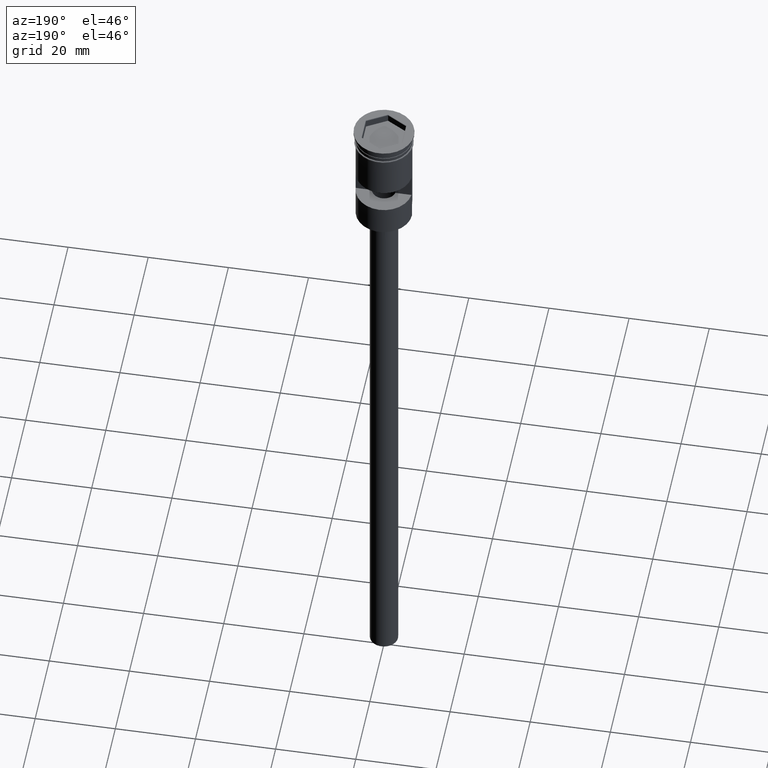
[diagram: clean part render]
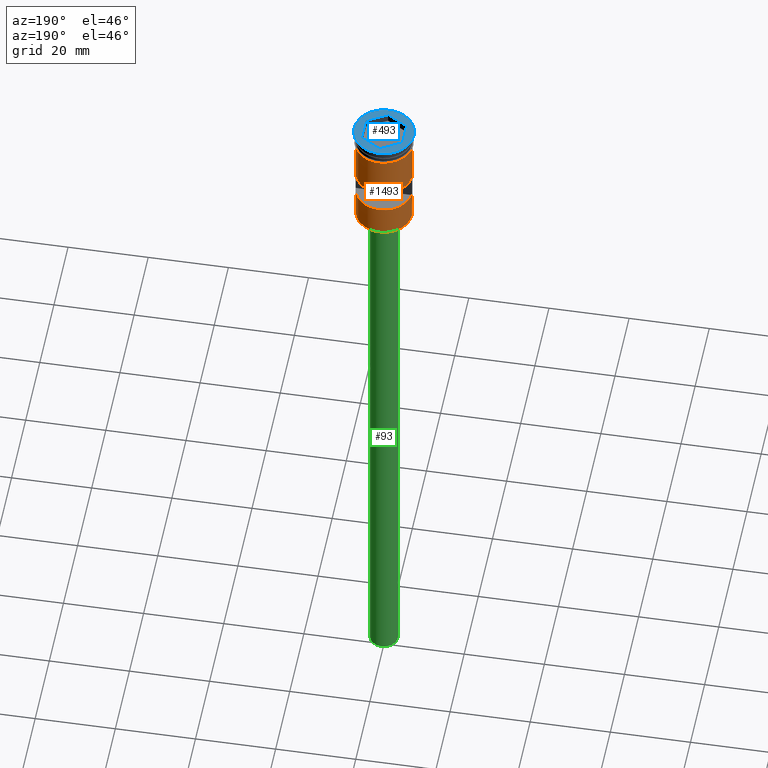
[diagram: same view with three faces highlighted in distinct colors, each labeled with its STEP entity id]
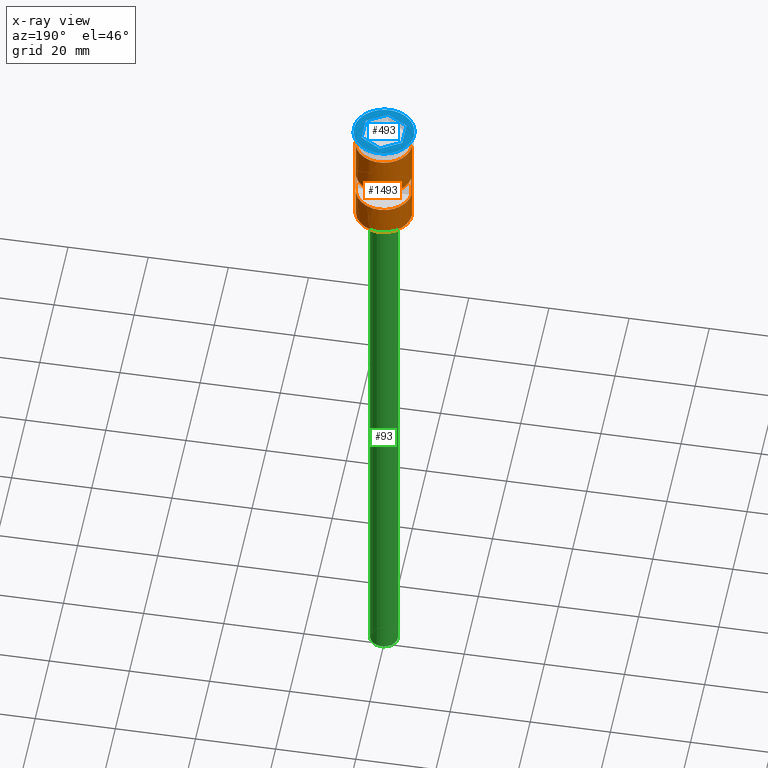
[diagram: x-ray of the same camera — body ghosted, the three highlighted faces saturated]
A machine part, auxiliary view with three faces highlighted in distinct colors.
The next image is the same camera in x-ray (body ghosted, the three faces saturated) — at least one of them is partly hidden behind the body in this view.
Their STEP definitions:

[orange] entity #1493 — the highlighted cylindrical surface (edge-blend (fillet) strip) has radius 7 mm, axis along (-0, -0, 1).
#1 = VECTOR ( 'NONE', #603, 1000.000000000000000 ) ;
#41 = DIRECTION ( 'NONE',  ( -0.000000000000000000, -5.421010862427526114E-16, 1.000000000000000000 ) ) ;
#79 = CARTESIAN_POINT ( 'NONE',  ( 6.999999999999993783, 8.572527594031465301E-16, -28.50000000000000000 ) ) ;
#123 = VECTOR ( 'NONE', #359, 1000.000000000000000 ) ;
#145 = EDGE_CURVE ( 'NONE', #1019, #533, #971, .T. ) ;
#153 = AXIS2_PLACEMENT_3D ( 'NONE', #1158, #41, #1535 ) ;
#158 = LINE ( 'NONE', #1383, #1319 ) ;
#162 = CARTESIAN_POINT ( 'NONE',  ( -6.999999999999993783, 0.000000000000000000, -28.29999999999999361 ) ) ;
#168 = LINE ( 'NONE', #780, #1238 ) ;
#170 = CARTESIAN_POINT ( 'NONE',  ( 6.999999999999993783, 8.572527594031465301E-16, -28.29999999999999361 ) ) ;
#190 = ORIENTED_EDGE ( 'NONE', *, *, #1466, .T. ) ;
#200 = CARTESIAN_POINT ( 'NONE',  ( -6.999999999999993783, 0.000000000000000000, -24.29999999999998295 ) ) ;
#212 = VERTEX_POINT ( 'NONE', #1223 ) ;
#214 = CARTESIAN_POINT ( 'NONE',  ( -6.974238309665074631, 0.5999999999999999778, 0.000000000000000000 ) ) ;
#221 = CARTESIAN_POINT ( 'NONE',  ( 0.000000000000000000, 0.000000000000000000, 0.000000000000000000 ) ) ;
#254 = VERTEX_POINT ( 'NONE', #1595 ) ;
#257 = AXIS2_PLACEMENT_3D ( 'NONE', #221, #1346, #364 ) ;
#259 = CARTESIAN_POINT ( 'NONE',  ( 6.974238309665074631, 0.5999999999999999778, 0.000000000000000000 ) ) ;
#303 = VERTEX_POINT ( 'NONE', #373 ) ;
#334 = AXIS2_PLACEMENT_3D ( 'NONE', #614, #1120, #449 ) ;
#337 = DIRECTION ( 'NONE',  ( 0.000000000000000000, -1.000000000000000000, 2.478176394252582620E-16 ) ) ;
#359 = DIRECTION ( 'NONE',  ( 0.000000000000000000, 0.000000000000000000, -1.000000000000000000 ) ) ;
#364 = DIRECTION ( 'NONE',  ( 1.000000000000000000, 0.000000000000000000, 0.000000000000000000 ) ) ;
#366 = LINE ( 'NONE', #259, #123 ) ;
#373 = CARTESIAN_POINT ( 'NONE',  ( -7.000000000000000000, 8.572527594031472204E-16, -3.799999999999998490 ) ) ;
#416 = EDGE_CURVE ( 'NONE', #681, #254, #366, .T. ) ;
#420 = CARTESIAN_POINT ( 'NONE',  ( 0.000000000000000000, 0.000000000000000000, -3.799999999999998490 ) ) ;
#424 = ORIENTED_EDGE ( 'NONE', *, *, #1414, .F. ) ;
#425 = VECTOR ( 'NONE', #1565, 1000.000000000000000 ) ;
#430 = AXIS2_PLACEMENT_3D ( 'NONE', #420, #701, #1563 ) ;
#433 = ORIENTED_EDGE ( 'NONE', *, *, #1092, .T. ) ;
#445 = VERTEX_POINT ( 'NONE', #659 ) ;
#449 = DIRECTION ( 'NONE',  ( -1.000000000000000000, 0.000000000000000000, 0.000000000000000000 ) ) ;
#463 = VERTEX_POINT ( 'NONE', #162 ) ;
#482 = EDGE_CURVE ( 'NONE', #212, #681, #1498, .T. ) ;
#486 = FACE_OUTER_BOUND ( 'NONE', #509, .T. ) ;
#500 = EDGE_CURVE ( 'NONE', #1304, #212, #1073, .T. ) ;
#509 = EDGE_LOOP ( 'NONE', ( #433, #1544, #424, #1141, #1408, #190 ) ) ;
#512 = DIRECTION ( 'NONE',  ( -0.000000000000000000, -0.000000000000000000, 1.000000000000000000 ) ) ;
#533 = VERTEX_POINT ( 'NONE', #1418 ) ;
#534 = VECTOR ( 'NONE', #906, 1000.000000000000000 ) ;
#580 = CARTESIAN_POINT ( 'NONE',  ( 6.974238309665075519, 0.5999999999999999778, -14.50000000000000178 ) ) ;
#603 = DIRECTION ( 'NONE',  ( -0.000000000000000000, -0.000000000000000000, 1.000000000000000000 ) ) ;
#614 = CARTESIAN_POINT ( 'NONE',  ( 0.000000000000000000, 0.000000000000000000, -28.29999999999999361 ) ) ;
#659 = CARTESIAN_POINT ( 'NONE',  ( 6.999999999999999112, 0.000000000000000000, -3.799999999999998490 ) ) ;
#681 = VERTEX_POINT ( 'NONE', #580 ) ;
#701 = DIRECTION ( 'NONE',  ( -0.000000000000000000, -0.000000000000000000, 1.000000000000000000 ) ) ;
#780 = CARTESIAN_POINT ( 'NONE',  ( 6.999999999999996447, 0.000000000000000000, 0.000000000000000000 ) ) ;
#799 = DIRECTION ( 'NONE',  ( -0.000000000000000000, -0.000000000000000000, 1.000000000000000000 ) ) ;
#839 = DIRECTION ( 'NONE',  ( -0.000000000000000000, -2.710505431213763057E-16, -1.000000000000000000 ) ) ;
#884 = ORIENTED_EDGE ( 'NONE', *, *, #1313, .F. ) ;
#906 = DIRECTION ( 'NONE',  ( -0.000000000000000000, -0.000000000000000000, 1.000000000000000000 ) ) ;
#961 = CARTESIAN_POINT ( 'NONE',  ( 0.000000000000000000, 0.000000000000000000, -14.50000000000000178 ) ) ;
#971 = LINE ( 'NONE', #79, #425 ) ;
#1019 = VERTEX_POINT ( 'NONE', #170 ) ;
#1030 = CARTESIAN_POINT ( 'NONE',  ( -6.974238309665074631, 0.5999999999999999778, -20.50000000000000000 ) ) ;
#1038 = AXIS2_PLACEMENT_3D ( 'NONE', #961, #839, #337 ) ;
#1073 = LINE ( 'NONE', #214, #534 ) ;
#1092 = EDGE_CURVE ( 'NONE', #463, #1366, #158, .T. ) ;
#1120 = DIRECTION ( 'NONE',  ( 0.000000000000000000, 0.000000000000000000, 1.000000000000000000 ) ) ;
#1141 = ORIENTED_EDGE ( 'NONE', *, *, #1263, .F. ) ;
#1150 = ORIENTED_EDGE ( 'NONE', *, *, #482, .F. ) ;
#1158 = CARTESIAN_POINT ( 'NONE',  ( 0.000000000000000000, 0.000000000000000000, -20.50000000000000000 ) ) ;
#1188 = CIRCLE ( 'NONE', #334, 6.999999999999996447 ) ;
#1219 = LINE ( 'NONE', #1354, #1 ) ;
#1223 = CARTESIAN_POINT ( 'NONE',  ( -6.974238309665074631, 0.5999999999999999778, -14.50000000000000178 ) ) ;
#1238 = VECTOR ( 'NONE', #512, 1000.000000000000000 ) ;
#1263 = EDGE_CURVE ( 'NONE', #533, #445, #168, .T. ) ;
#1296 = CIRCLE ( 'NONE', #430, 6.999999999999999112 ) ;
#1299 = EDGE_LOOP ( 'NONE', ( #884, #1443, #1150, #1488 ) ) ;
#1304 = VERTEX_POINT ( 'NONE', #1030 ) ;
#1313 = EDGE_CURVE ( 'NONE', #254, #1304, #1452, .T. ) ;
#1319 = VECTOR ( 'NONE', #799, 1000.000000000000000 ) ;
#1346 = DIRECTION ( 'NONE',  ( -0.000000000000000000, -0.000000000000000000, 1.000000000000000000 ) ) ;
#1354 = CARTESIAN_POINT ( 'NONE',  ( -6.999999999999996447, 8.572527594031468259E-16, 0.000000000000000000 ) ) ;
#1366 = VERTEX_POINT ( 'NONE', #200 ) ;
#1383 = CARTESIAN_POINT ( 'NONE',  ( -6.999999999999993783, 0.000000000000000000, -28.50000000000000000 ) ) ;
#1408 = ORIENTED_EDGE ( 'NONE', *, *, #145, .F. ) ;
#1414 = EDGE_CURVE ( 'NONE', #445, #303, #1296, .T. ) ;
#1418 = CARTESIAN_POINT ( 'NONE',  ( 6.999999999999996447, 8.572527594031468259E-16, -24.29999999999998295 ) ) ;
#1443 = ORIENTED_EDGE ( 'NONE', *, *, #416, .F. ) ;
#1452 = CIRCLE ( 'NONE', #153, 6.999999999999996447 ) ;
#1460 = CYLINDRICAL_SURFACE ( 'NONE', #257, 6.999999999999996447 ) ;
#1466 = EDGE_CURVE ( 'NONE', #1019, #463, #1188, .T. ) ;
#1478 = FACE_BOUND ( 'NONE', #1299, .T. ) ;
#1488 = ORIENTED_EDGE ( 'NONE', *, *, #500, .F. ) ;
#1493 = ADVANCED_FACE ( 'NONE', ( #1478, #486 ), #1460, .T. ) ;
#1498 = CIRCLE ( 'NONE', #1038, 6.999999999999996447 ) ;
#1516 = EDGE_CURVE ( 'NONE', #1366, #303, #1219, .T. ) ;
#1535 = DIRECTION ( 'NONE',  ( 0.000000000000000000, 1.000000000000000000, 4.956352788505165240E-16 ) ) ;
#1544 = ORIENTED_EDGE ( 'NONE', *, *, #1516, .T. ) ;
#1563 = DIRECTION ( 'NONE',  ( 1.000000000000000000, 0.000000000000000000, 0.000000000000000000 ) ) ;
#1565 = DIRECTION ( 'NONE',  ( -0.000000000000000000, -0.000000000000000000, 1.000000000000000000 ) ) ;
#1595 = CARTESIAN_POINT ( 'NONE',  ( 6.974238309665075519, 0.5999999999999999778, -20.50000000000000000 ) ) ;

[blue] entity #493 — the highlighted planar face has unit normal (0, -0, 1).
#29 = EDGE_CURVE ( 'NONE', #479, #752, #421, .T. ) ;
#68 = ORIENTED_EDGE ( 'NONE', *, *, #1127, .T. ) ;
#98 = CARTESIAN_POINT ( 'NONE',  ( 5.100000000000001421, 2.944486372867094470, 0.000000000000000000 ) ) ;
#134 = ORIENTED_EDGE ( 'NONE', *, *, #707, .T. ) ;
#143 = CARTESIAN_POINT ( 'NONE',  ( 4.725224118234917529E-17, 5.888972745734183611, 0.000000000000000000 ) ) ;
#152 = CIRCLE ( 'NONE', #1550, 7.500000000000000000 ) ;
#165 = VERTEX_POINT ( 'NONE', #98 ) ;
#166 = LINE ( 'NONE', #519, #605 ) ;
#198 = PLANE ( 'NONE',  #400 ) ;
#274 = CARTESIAN_POINT ( 'NONE',  ( 6.485146259703940858E-16, -5.888972745734185388, 0.000000000000000000 ) ) ;
#308 = AXIS2_PLACEMENT_3D ( 'NONE', #1510, #529, #499 ) ;
#326 = CARTESIAN_POINT ( 'NONE',  ( 0.000000000000000000, 0.000000000000000000, 0.000000000000000000 ) ) ;
#360 = CARTESIAN_POINT ( 'NONE',  ( -5.049999999999999822, -2.973353886326575601, 0.000000000000000000 ) ) ;
#386 = EDGE_LOOP ( 'NONE', ( #714, #1180 ) ) ;
#389 = LINE ( 'NONE', #521, #1552 ) ;
#400 = AXIS2_PLACEMENT_3D ( 'NONE', #326, #1272, #700 ) ;
#409 = CARTESIAN_POINT ( 'NONE',  ( -5.100000000000001421, 2.944486372867091806, 0.000000000000000000 ) ) ;
#418 = VERTEX_POINT ( 'NONE', #606 ) ;
#421 = LINE ( 'NONE', #1284, #503 ) ;
#436 = DIRECTION ( 'NONE',  ( 0.000000000000000000, -1.000000000000000000, -0.000000000000000000 ) ) ;
#460 = CARTESIAN_POINT ( 'NONE',  ( -5.100000000000001421, -2.944486372867093582, 0.000000000000000000 ) ) ;
#467 = LINE ( 'NONE', #1248, #1600 ) ;
#479 = VERTEX_POINT ( 'NONE', #409 ) ;
#488 = DIRECTION ( 'NONE',  ( -0.8660254037844387076, 0.4999999999999998335, 0.000000000000000000 ) ) ;
#493 = ADVANCED_FACE ( 'NONE', ( #1187, #1194 ), #198, .T. ) ;
#499 = DIRECTION ( 'NONE',  ( 1.000000000000000000, 0.000000000000000000, 0.000000000000000000 ) ) ;
#503 = VECTOR ( 'NONE', #1557, 1000.000000000000114 ) ;
#519 = CARTESIAN_POINT ( 'NONE',  ( -5.100000000000001421, 2.886751345948128655, 0.000000000000000000 ) ) ;
#521 = CARTESIAN_POINT ( 'NONE',  ( 5.050000000000000711, 2.973353886326576045, 0.000000000000000000 ) ) ;
#529 = DIRECTION ( 'NONE',  ( -0.000000000000000000, -0.000000000000000000, 1.000000000000000000 ) ) ;
#545 = EDGE_LOOP ( 'NONE', ( #134, #665, #950, #68, #759, #867 ) ) ;
#562 = CARTESIAN_POINT ( 'NONE',  ( 5.100000000000001421, -2.886751345948129543, 0.000000000000000000 ) ) ;
#598 = CARTESIAN_POINT ( 'NONE',  ( -7.500000000000000000, 9.184850993605147944E-16, 0.000000000000000000 ) ) ;
#605 = VECTOR ( 'NONE', #778, 1000.000000000000000 ) ;
#606 = CARTESIAN_POINT ( 'NONE',  ( 5.100000000000001421, -2.944486372867094026, 0.000000000000000000 ) ) ;
#634 = DIRECTION ( 'NONE',  ( 1.000000000000000000, 0.000000000000000000, 0.000000000000000000 ) ) ;
#650 = DIRECTION ( 'NONE',  ( 0.8660254037844388186, -0.4999999999999996669, 0.000000000000000000 ) ) ;
#665 = ORIENTED_EDGE ( 'NONE', *, *, #29, .T. ) ;
#666 = VECTOR ( 'NONE', #488, 1000.000000000000000 ) ;
#693 = VECTOR ( 'NONE', #436, 1000.000000000000000 ) ;
#700 = DIRECTION ( 'NONE',  ( 1.000000000000000000, 0.000000000000000000, 0.000000000000000000 ) ) ;
#707 = EDGE_CURVE ( 'NONE', #844, #479, #166, .T. ) ;
#714 = ORIENTED_EDGE ( 'NONE', *, *, #1046, .T. ) ;
#752 = VERTEX_POINT ( 'NONE', #143 ) ;
#759 = ORIENTED_EDGE ( 'NONE', *, *, #936, .T. ) ;
#772 = DIRECTION ( 'NONE',  ( -0.000000000000000000, -0.000000000000000000, 1.000000000000000000 ) ) ;
#778 = DIRECTION ( 'NONE',  ( 0.000000000000000000, 1.000000000000000000, 0.000000000000000000 ) ) ;
#843 = EDGE_CURVE ( 'NONE', #1071, #844, #1481, .T. ) ;
#844 = VERTEX_POINT ( 'NONE', #460 ) ;
#867 = ORIENTED_EDGE ( 'NONE', *, *, #843, .T. ) ;
#882 = VERTEX_POINT ( 'NONE', #1115 ) ;
#908 = CARTESIAN_POINT ( 'NONE',  ( 0.000000000000000000, 0.000000000000000000, 0.000000000000000000 ) ) ;
#930 = VERTEX_POINT ( 'NONE', #598 ) ;
#936 = EDGE_CURVE ( 'NONE', #418, #1071, #467, .T. ) ;
#950 = ORIENTED_EDGE ( 'NONE', *, *, #1298, .T. ) ;
#996 = DIRECTION ( 'NONE',  ( -0.8660254037844387076, -0.4999999999999998890, 0.000000000000000000 ) ) ;
#1014 = CIRCLE ( 'NONE', #308, 7.500000000000000000 ) ;
#1046 = EDGE_CURVE ( 'NONE', #882, #930, #152, .T. ) ;
#1071 = VERTEX_POINT ( 'NONE', #274 ) ;
#1115 = CARTESIAN_POINT ( 'NONE',  ( 7.500000000000000000, 0.000000000000000000, 0.000000000000000000 ) ) ;
#1127 = EDGE_CURVE ( 'NONE', #165, #418, #1301, .T. ) ;
#1180 = ORIENTED_EDGE ( 'NONE', *, *, #1273, .T. ) ;
#1187 = FACE_BOUND ( 'NONE', #545, .T. ) ;
#1194 = FACE_OUTER_BOUND ( 'NONE', #386, .T. ) ;
#1248 = CARTESIAN_POINT ( 'NONE',  ( 0.05000000000000229955, -5.860105232274703368, 0.000000000000000000 ) ) ;
#1272 = DIRECTION ( 'NONE',  ( 0.000000000000000000, -0.000000000000000000, 1.000000000000000000 ) ) ;
#1273 = EDGE_CURVE ( 'NONE', #930, #882, #1014, .T. ) ;
#1284 = CARTESIAN_POINT ( 'NONE',  ( -0.05000000000000093953, 5.860105232274702480, 0.000000000000000000 ) ) ;
#1298 = EDGE_CURVE ( 'NONE', #752, #165, #389, .T. ) ;
#1301 = LINE ( 'NONE', #562, #693 ) ;
#1481 = LINE ( 'NONE', #360, #666 ) ;
#1510 = CARTESIAN_POINT ( 'NONE',  ( 0.000000000000000000, 0.000000000000000000, 0.000000000000000000 ) ) ;
#1550 = AXIS2_PLACEMENT_3D ( 'NONE', #908, #772, #634 ) ;
#1552 = VECTOR ( 'NONE', #650, 1000.000000000000000 ) ;
#1557 = DIRECTION ( 'NONE',  ( 0.8660254037844385966, 0.4999999999999999445, 0.000000000000000000 ) ) ;
#1600 = VECTOR ( 'NONE', #996, 1000.000000000000000 ) ;

[green] entity #93 — the highlighted cylindrical surface (edge-blend (fillet) strip) has radius 3.5 mm, axis along (-0, -0, 1).
#17 = LINE ( 'NONE', #1532, #1342 ) ;
#61 = CARTESIAN_POINT ( 'NONE',  ( 0.000000000000000000, 0.000000000000000000, -178.5000000000000000 ) ) ;
#93 = ADVANCED_FACE ( 'NONE', ( #1060 ), #295, .T. ) ;
#121 = DIRECTION ( 'NONE',  ( 0.000000000000000000, 0.000000000000000000, -1.000000000000000000 ) ) ;
#147 = CARTESIAN_POINT ( 'NONE',  ( 0.000000000000000000, 0.000000000000000000, -178.5000000000000000 ) ) ;
#173 = EDGE_CURVE ( 'NONE', #1033, #967, #1233, .T. ) ;
#180 = DIRECTION ( 'NONE',  ( -0.000000000000000000, -0.000000000000000000, 1.000000000000000000 ) ) ;
#206 = VERTEX_POINT ( 'NONE', #836 ) ;
#295 = CYLINDRICAL_SURFACE ( 'NONE', #1365, 3.500000000000000444 ) ;
#358 = EDGE_CURVE ( 'NONE', #1164, #206, #604, .T. ) ;
#444 = DIRECTION ( 'NONE',  ( -1.000000000000000000, 0.000000000000000000, 0.000000000000000000 ) ) ;
#466 = DIRECTION ( 'NONE',  ( 0.000000000000000000, 0.000000000000000000, -1.000000000000000000 ) ) ;
#478 = CARTESIAN_POINT ( 'NONE',  ( 3.500000000000000444, 0.000000000000000000, -31.50000000000000000 ) ) ;
#487 = DIRECTION ( 'NONE',  ( -1.000000000000000000, 0.000000000000000000, 0.000000000000000000 ) ) ;
#514 = CARTESIAN_POINT ( 'NONE',  ( -3.500000000000000444, 4.286263797015737088E-16, -31.50000000000000000 ) ) ;
#571 = CARTESIAN_POINT ( 'NONE',  ( 0.000000000000000000, 0.000000000000000000, -31.50000000000000000 ) ) ;
#604 = CIRCLE ( 'NONE', #1291, 3.500000000000000444 ) ;
#647 = ORIENTED_EDGE ( 'NONE', *, *, #704, .F. ) ;
#704 = EDGE_CURVE ( 'NONE', #206, #967, #862, .T. ) ;
#792 = DIRECTION ( 'NONE',  ( 1.000000000000000000, 0.000000000000000000, 0.000000000000000000 ) ) ;
#836 = CARTESIAN_POINT ( 'NONE',  ( 3.500000000000000444, 0.000000000000000000, -178.5000000000000000 ) ) ;
#850 = AXIS2_PLACEMENT_3D ( 'NONE', #571, #466, #444 ) ;
#862 = LINE ( 'NONE', #1277, #1369 ) ;
#967 = VERTEX_POINT ( 'NONE', #478 ) ;
#1026 = EDGE_CURVE ( 'NONE', #1164, #1033, #17, .T. ) ;
#1033 = VERTEX_POINT ( 'NONE', #514 ) ;
#1042 = DIRECTION ( 'NONE',  ( -0.000000000000000000, -0.000000000000000000, 1.000000000000000000 ) ) ;
#1060 = FACE_OUTER_BOUND ( 'NONE', #1110, .T. ) ;
#1110 = EDGE_LOOP ( 'NONE', ( #1333, #1175, #1132, #647 ) ) ;
#1132 = ORIENTED_EDGE ( 'NONE', *, *, #173, .T. ) ;
#1164 = VERTEX_POINT ( 'NONE', #1306 ) ;
#1175 = ORIENTED_EDGE ( 'NONE', *, *, #1026, .T. ) ;
#1233 = CIRCLE ( 'NONE', #850, 3.500000000000000444 ) ;
#1277 = CARTESIAN_POINT ( 'NONE',  ( 3.500000000000000444, 0.000000000000000000, -178.5000000000000000 ) ) ;
#1291 = AXIS2_PLACEMENT_3D ( 'NONE', #147, #121, #487 ) ;
#1306 = CARTESIAN_POINT ( 'NONE',  ( -3.500000000000000444, 4.286263797015737088E-16, -178.5000000000000000 ) ) ;
#1333 = ORIENTED_EDGE ( 'NONE', *, *, #358, .F. ) ;
#1342 = VECTOR ( 'NONE', #180, 1000.000000000000000 ) ;
#1365 = AXIS2_PLACEMENT_3D ( 'NONE', #61, #1042, #792 ) ;
#1369 = VECTOR ( 'NONE', #1380, 1000.000000000000000 ) ;
#1380 = DIRECTION ( 'NONE',  ( -0.000000000000000000, -0.000000000000000000, 1.000000000000000000 ) ) ;
#1532 = CARTESIAN_POINT ( 'NONE',  ( -3.500000000000000444, 4.286263797015737088E-16, -178.5000000000000000 ) ) ;